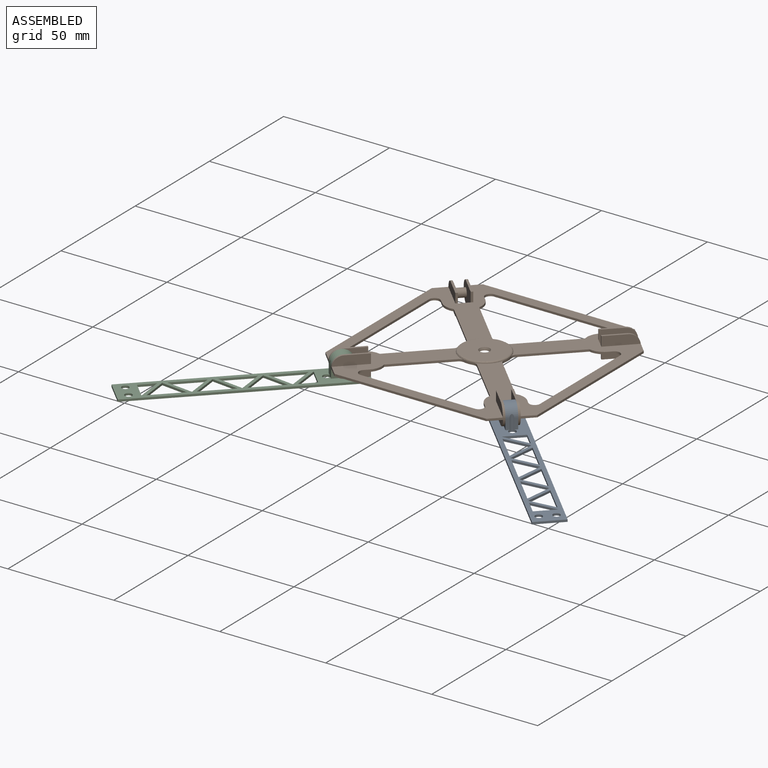
[diagram: assembled view]
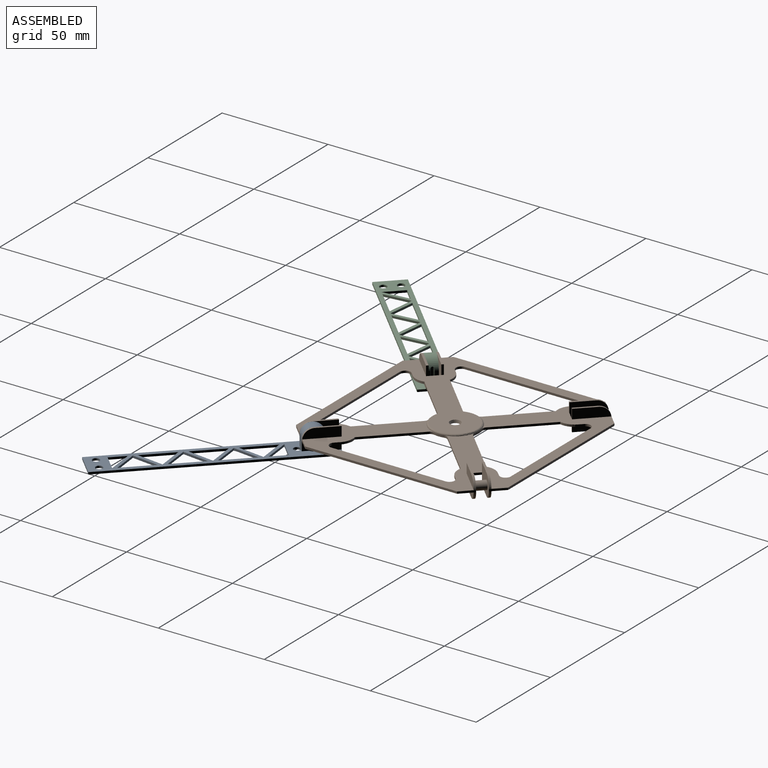
[diagram: assembled view, second angle]
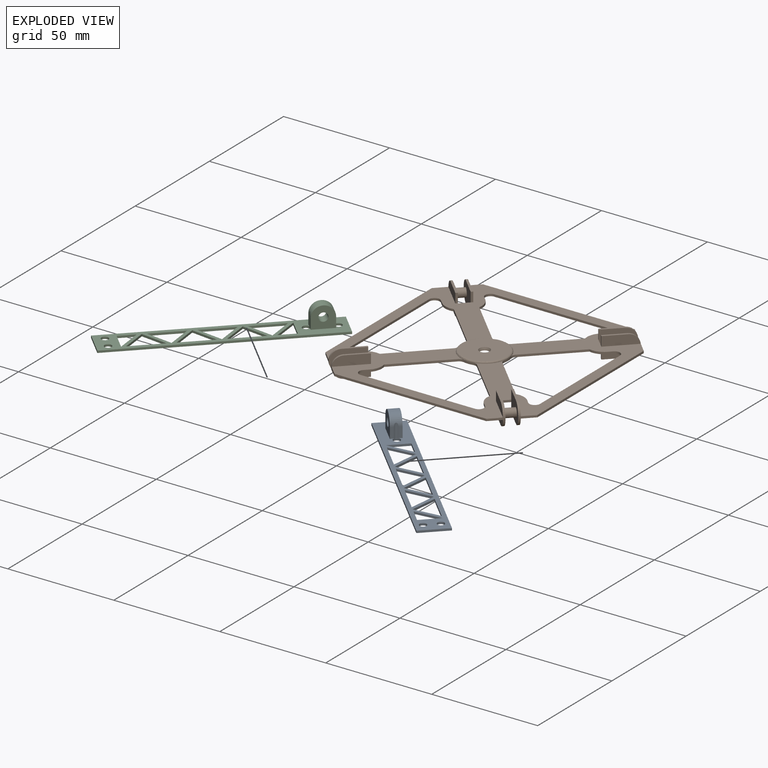
[diagram: exploded view]
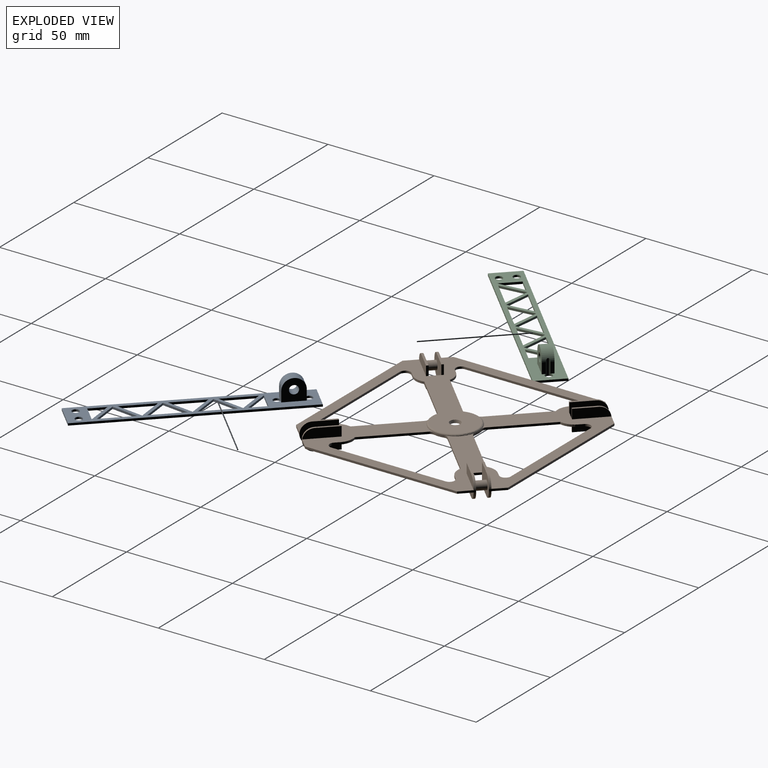
[diagram: exploded view, second angle]
ASSEMBLY  parts=3 mates=2
PART A: 42 faces, bbox 14x11x100 mm
  f0: plane 10x10mm, normal (-1,0,0), area 76.7mm2, adj f4,f7,f39,f40,f41
  f1: cylinder r=1.64mm len=7.61mm, axis (0,1,0), area 22.1mm2, adj f2,f4,f38,f39,f40
  f2: plane 5x1.61mm, normal (0,0,-1), area 8mm2, adj f1,f3,f39,f40
  f3: plane 10x10mm, normal (1,0,0), area 76.7mm2, adj f2,f6,f39,f40,f41
  f4: plane 5x1.61mm, normal (0,0,-1), area 8mm2, adj f0,f1,f39,f40
  f5: cylinder r=1.64mm len=7.61mm, axis (0,1,0), area 22.1mm2, adj f6,f7,f38,f39,f40
  f6: plane 5x1.61mm, normal (0,0,1), area 8mm2, adj f3,f5,f39,f40
  f7: plane 5x1.61mm, normal (0,0,1), area 8mm2, adj f0,f5,f39,f40
  f8: plane 10x1mm, normal (0,0,-1), area 10mm2, adj f9,f28,f38,f39
  f9: plane 10x7.9mm, normal (-0.62,0,0.78), area 12.7mm2, adj f8,f28,f38,f39
  f10: plane 10x7.9mm, normal (0.62,0,-0.78), area 12.7mm2, adj f11,f29,f38,f39
  f11: plane 15.81x1mm, normal (-1,0,0), area 15.8mm2, adj f10,f29,f38,f39
  f12: plane 10x7.9mm, normal (0.62,0,-0.78), area 12.7mm2, adj f13,f30,f38,f39
  f13: plane 15.81x1mm, normal (-1,0,0), area 15.8mm2, adj f12,f30,f38,f39
  f14: plane 10x7.9mm, normal (0.62,0,-0.78), area 12.7mm2, adj f15,f31,f38,f39
  f15: plane 15.81x1mm, normal (-1,0,0), area 15.8mm2, adj f14,f31,f38,f39
  f16: plane 100x1mm, normal (-1,0,0), area 100mm2, adj f17,f32,f38,f39
  f17: plane 14x1mm, normal (0,0,-1), area 14mm2, adj f16,f18,f38,f39
  f18: plane 100x1mm, normal (1,0,0), area 100mm2, adj f17,f32,f38,f39
  f19: plane 10x7.9mm, normal (0.62,0,-0.78), area 12.7mm2, adj f20,f33,f38,f39
  f20: plane 7.9x1mm, normal (-1,0,0), area 7.9mm2, adj f19,f33,f38,f39
  f21: plane 10x7.9mm, normal (-0.62,0,0.78), area 12.7mm2, adj f22,f34,f38,f39
  f22: plane 15.81x1mm, normal (1,0,0), area 15.8mm2, adj f21,f34,f38,f39
  f23: plane 10x7.9mm, normal (-0.62,0,0.78), area 12.7mm2, adj f24,f35,f38,f39
  f24: plane 15.81x1mm, normal (1,0,0), area 15.8mm2, adj f23,f35,f38,f39
  f25: plane 10x7.9mm, normal (-0.62,0,0.78), area 12.7mm2, adj f26,f36,f38,f39
  f26: plane 15.81x1mm, normal (1,0,0), area 15.8mm2, adj f25,f36,f38,f39
  f27: cylinder r=1.64mm len=3.28mm, axis (0,1,0), area 10.3mm2, adj f38,f39
  f28: plane 7.9x1mm, normal (1,0,0), area 7.9mm2, adj f8,f9,f38,f39
  f29: plane 10x7.9mm, normal (0.62,0,0.78), area 12.7mm2, adj f10,f11,f38,f39
  f30: plane 10x7.9mm, normal (0.62,0,0.78), area 12.7mm2, adj f12,f13,f38,f39
  f31: plane 10x7.9mm, normal (0.62,0,0.78), area 12.7mm2, adj f14,f15,f38,f39
  f32: plane 14x1mm, normal (0,0,1), area 14mm2, adj f16,f18,f38,f39
  f33: plane 10x1mm, normal (0,0,1), area 10mm2, adj f19,f20,f38,f39
  f34: plane 10x7.9mm, normal (-0.62,0,-0.78), area 12.7mm2, adj f21,f22,f38,f39
  f35: plane 10x7.9mm, normal (-0.62,0,-0.78), area 12.7mm2, adj f23,f24,f38,f39
  f36: plane 10x7.9mm, normal (-0.62,0,-0.78), area 12.7mm2, adj f25,f26,f38,f39
  f37: cylinder r=1.64mm len=3.28mm, axis (0,1,0), area 10.3mm2, adj f38,f39
  f38: plane 100x14mm, normal (0,-1,0), area 812.9mm2, adj f1,f5,f8,f9,f10,f11,f12,f13
  f39: plane 100x14mm, normal (0,1,0), area 763.6mm2, adj f0,f1,f2,f3,f4,f5,f6,f7
  f40: cylinder r=5mm len=10mm, axis (1,0,0), area 73.9mm2, adj f0,f1,f2,f3,f4,f5,f6,f7
  f41: cylinder r=2mm len=5mm, axis (1,0,0), area 62.8mm2, adj f0,f3
PART B: 131 faces, bbox 100x100x10 mm
  f0: cylinder r=11.1mm len=4.44mm, axis (0,0,-1), area 4.5mm2, adj f32,f118,f121,f130
  f1: cylinder r=11.1mm len=4.44mm, axis (0,0,-1), area 4.5mm2, adj f32,f122,f125,f130
  f2: cylinder r=11.1mm len=4.44mm, axis (0,0,-1), area 4.5mm2, adj f32,f126,f129,f130
  f3: plane 3.53x3.53mm, normal (-0.71,-0.71,0), area 5mm2, adj f31,f32,f77,f86
  f4: plane 3.53x3.53mm, normal (-0.71,0.71,0), area 5mm2, adj f31,f32,f64,f70
  f5: plane 3.53x3.53mm, normal (0.71,0.71,0), area 5mm2, adj f31,f32,f49,f56
  f6: plane 3.53x3.53mm, normal (0.71,-0.71,0), area 5mm2, adj f31,f32,f35,f44
  f7: plane 20.48x20.48mm, normal (0.71,-0.71,0), area 29mm2, adj f31,f32,f106,f114
  f8: plane 1.73x1.73mm, normal (0.71,-0.71,0), area 2.4mm2, adj f31,f32,f106,f115
  f9: plane 53.89x1mm, normal (-1,0,0), area 53.9mm2, adj f31,f32,f115,f116
  f10: plane 1.73x1.73mm, normal (0.71,0.71,0), area 2.4mm2, adj f31,f32,f107,f116
  f11: plane 20.48x20.48mm, normal (0.71,0.71,0), area 29mm2, adj f31,f32,f107,f117
  f12: plane 20.48x20.48mm, normal (-0.71,-0.71,0), area 29mm2, adj f31,f32,f108,f118
  f13: plane 1.73x1.73mm, normal (-0.71,-0.71,0), area 2.4mm2, adj f31,f32,f108,f119
  f14: plane 53.89x1mm, normal (0,1,0), area 53.9mm2, adj f31,f32,f119,f120
  f15: plane 1.73x1.73mm, normal (0.71,-0.71,0), area 2.4mm2, adj f31,f32,f109,f120
  f16: plane 20.48x20.48mm, normal (0.71,-0.71,0), area 29mm2, adj f31,f32,f109,f121
  f17: plane 20.48x20.48mm, normal (-0.71,0.71,0), area 29mm2, adj f31,f32,f110,f122
  f18: plane 1.73x1.73mm, normal (-0.71,0.71,0), area 2.4mm2, adj f31,f32,f110,f123
  f19: plane 53.89x1mm, normal (1,0,0), area 53.9mm2, adj f31,f32,f123,f124
  f20: plane 1.73x1.73mm, normal (-0.71,-0.71,0), area 2.4mm2, adj f31,f32,f111,f124
  f21: plane 20.48x20.48mm, normal (-0.71,-0.71,0), area 29mm2, adj f31,f32,f111,f125
  f22: plane 20.48x20.48mm, normal (0.71,0.71,0), area 29mm2, adj f31,f32,f112,f126
  f23: plane 1.73x1.73mm, normal (0.71,0.71,0), area 2.4mm2, adj f31,f32,f112,f127
  f24: plane 53.89x1mm, normal (0,-1,0), area 53.9mm2, adj f31,f32,f127,f128
  f25: plane 1.73x1.73mm, normal (-0.71,0.71,0), area 2.4mm2, adj f31,f32,f113,f128
  f26: plane 71.72x1mm, normal (0,1,0), area 71.7mm2, adj f31,f32,f94,f96
  f27: plane 71.72x1mm, normal (-1,0,0), area 71.7mm2, adj f31,f32,f93,f100
  f28: plane 71.72x1mm, normal (0,-1,0), area 71.7mm2, adj f31,f32,f98,f99
  f29: plane 71.72x1mm, normal (1,0,0), area 71.7mm2, adj f31,f32,f95,f97
  f30: plane 20.48x20.48mm, normal (-0.71,0.71,0), area 29mm2, adj f31,f32,f113,f129
  f31: plane 100x100mm, normal (0,0,1), area 3558.1mm2, adj f3,f4,f5,f6,f7,f8,f9,f10
  f32: plane 100x100mm, normal (0,0,-1), area 3712.8mm2, adj f0,f1,f2,f3,f4,f5,f6,f7
  f33: plane 10.94x10.94mm, normal (-0.71,-0.71,0), area 64.4mm2, adj f31,f34,f38,f98
  f34: plane 4.5x0.71mm, normal (-0.71,0.71,0), area 4.5mm2, adj f31,f33,f35,f38
  f35: plane 10.96x10.96mm, normal (0.71,0.71,0), area 131.7mm2, adj f6,f34,f36,f38,f39,f89,f98
  f36: plane 4.5x0.71mm, normal (-0.71,0.71,0), area 4.5mm2, adj f32,f35,f37,f39
  f37: plane 10.94x10.94mm, normal (-0.71,-0.71,0), area 64.4mm2, adj f32,f36,f39,f98
  f38: plane 8.13x8.13mm, normal (0,0,1), area 10.5mm2, adj f33,f34,f35,f98
  f39: plane 8.13x8.13mm, normal (0,0,-1), area 10.5mm2, adj f35,f36,f37,f98
  f40: plane 4.5x0.71mm, normal (-0.71,0.71,0), area 4.5mm2, adj f31,f41,f44,f45
  f41: plane 10.94x10.94mm, normal (0.71,0.71,0), area 64.4mm2, adj f31,f40,f45,f97
  f42: plane 10.94x10.94mm, normal (0.71,0.71,0), area 64.4mm2, adj f32,f43,f46,f97
  f43: plane 4.5x0.71mm, normal (-0.71,0.71,0), area 4.5mm2, adj f32,f42,f44,f46
  f44: plane 10.96x10.96mm, normal (-0.71,-0.71,0), area 131.7mm2, adj f6,f40,f43,f45,f46,f89,f97
  f45: plane 8.13x8.13mm, normal (0,0,1), area 10.5mm2, adj f40,f41,f44,f97
  f46: plane 8.13x8.13mm, normal (0,0,-1), area 10.5mm2, adj f42,f43,f44,f97
  f47: plane 4.5x0.71mm, normal (-0.71,-0.71,0), area 4.5mm2, adj f31,f48,f49,f52
  f48: plane 10.94x10.94mm, normal (-0.71,0.71,0), area 64.4mm2, adj f31,f47,f52,f96
  f49: plane 10.96x10.96mm, normal (0.71,-0.71,0), area 131.7mm2, adj f5,f47,f51,f52,f53,f90,f96
  f50: plane 10.94x10.94mm, normal (-0.71,0.71,0), area 64.4mm2, adj f32,f51,f53,f96
  f51: plane 4.5x0.71mm, normal (-0.71,-0.71,0), area 4.5mm2, adj f32,f49,f50,f53
  f52: plane 8.13x8.13mm, normal (0,0,1), area 10.5mm2, adj f47,f48,f49,f96
  f53: plane 8.13x8.13mm, normal (0,0,-1), area 10.5mm2, adj f49,f50,f51,f96
  f54: plane 10.94x10.94mm, normal (0.71,-0.71,0), area 64.4mm2, adj f31,f55,f59,f95
  f55: plane 4.5x0.71mm, normal (-0.71,-0.71,0), area 4.5mm2, adj f31,f54,f56,f59
  f56: plane 10.96x10.96mm, normal (-0.71,0.71,0), area 131.7mm2, adj f5,f55,f57,f59,f60,f90,f95
  f57: plane 4.5x0.71mm, normal (-0.71,-0.71,0), area 4.5mm2, adj f32,f56,f58,f60
  f58: plane 10.94x10.94mm, normal (0.71,-0.71,0), area 64.4mm2, adj f32,f57,f60,f95
  f59: plane 8.13x8.13mm, normal (0,0,1), area 10.5mm2, adj f54,f55,f56,f95
  f60: plane 8.13x8.13mm, normal (0,0,-1), area 10.5mm2, adj f56,f57,f58,f95
  f61: plane 4.5x0.71mm, normal (0.71,-0.71,0), area 4.5mm2, adj f31,f62,f64,f66
  f62: plane 10.94x10.94mm, normal (-0.71,-0.71,0), area 64.4mm2, adj f31,f61,f66,f93
  f63: plane 4.5x0.71mm, normal (0.71,-0.71,0), area 4.5mm2, adj f32,f64,f65,f67
  f64: plane 10.96x10.96mm, normal (0.71,0.71,0), area 131.7mm2, adj f4,f61,f63,f66,f67,f91,f93
  f65: plane 10.94x10.94mm, normal (-0.71,-0.71,0), area 64.4mm2, adj f32,f63,f67,f93
  f66: plane 8.13x8.13mm, normal (0,0,1), area 10.5mm2, adj f61,f62,f64,f93
  f67: plane 8.13x8.13mm, normal (0,0,-1), area 10.5mm2, adj f63,f64,f65,f93
  f68: plane 10.94x10.94mm, normal (0.71,0.71,0), area 64.4mm2, adj f31,f69,f73,f94
  f69: plane 4.5x0.71mm, normal (0.71,-0.71,0), area 4.5mm2, adj f31,f68,f70,f73
  f70: plane 10.96x10.96mm, normal (-0.71,-0.71,0), area 131.7mm2, adj f4,f69,f71,f73,f74,f91,f94
  f71: plane 4.5x0.71mm, normal (0.71,-0.71,0), area 4.5mm2, adj f32,f70,f72,f74
  f72: plane 10.94x10.94mm, normal (0.71,0.71,0), area 64.4mm2, adj f32,f71,f74,f94
  f73: plane 8.13x8.13mm, normal (0,0,1), area 10.5mm2, adj f68,f69,f70,f94
  f74: plane 8.13x8.13mm, normal (0,0,-1), area 10.5mm2, adj f70,f71,f72,f94
  f75: plane 10.94x10.94mm, normal (-0.71,0.71,0), area 64.4mm2, adj f31,f76,f80,f100
  f76: plane 4.5x0.71mm, normal (0.71,0.71,0), area 4.5mm2, adj f31,f75,f77,f80
  f77: plane 10.96x10.96mm, normal (0.71,-0.71,0), area 131.7mm2, adj f3,f76,f78,f80,f81,f92,f100
  f78: plane 4.5x0.71mm, normal (0.71,0.71,0), area 4.5mm2, adj f32,f77,f79,f81
  f79: plane 10.94x10.94mm, normal (-0.71,0.71,0), area 64.4mm2, adj f32,f78,f81,f100
  f80: plane 8.13x8.13mm, normal (0,0,1), area 10.5mm2, adj f75,f76,f77,f100
  f81: plane 8.13x8.13mm, normal (0,0,-1), area 10.5mm2, adj f77,f78,f79,f100
  f82: plane 4.5x0.71mm, normal (0.71,0.71,0), area 4.5mm2, adj f31,f83,f86,f87
  f83: plane 10.94x10.94mm, normal (0.71,-0.71,0), area 64.4mm2, adj f31,f82,f87,f99
  f84: plane 10.94x10.94mm, normal (0.71,-0.71,0), area 64.4mm2, adj f32,f85,f88,f99
  f85: plane 4.5x0.71mm, normal (0.71,0.71,0), area 4.5mm2, adj f32,f84,f86,f88
  f86: plane 10.96x10.96mm, normal (-0.71,0.71,0), area 131.7mm2, adj f3,f82,f85,f87,f88,f92,f99
  f87: plane 8.13x8.13mm, normal (0,0,1), area 10.5mm2, adj f82,f83,f86,f99
  f88: plane 8.13x8.13mm, normal (0,0,-1), area 10.5mm2, adj f84,f85,f86,f99
  f89: cylinder r=2mm len=6.36mm, axis (0.71,0.71,0), area 62.8mm2, adj f35,f44
  f90: cylinder r=2mm len=6.36mm, axis (-0.71,0.71,0), area 62.8mm2, adj f49,f56
  f91: cylinder r=2mm len=6.36mm, axis (-0.71,-0.71,0), area 62.8mm2, adj f64,f70
  f92: cylinder r=2mm len=6.36mm, axis (0.71,-0.71,0), area 62.8mm2, adj f77,f86
  f93: cylinder r=5mm len=10mm, axis (0.71,0.71,0), area 22.2mm2, adj f27,f31,f32,f62,f64,f65,f66,f67
  f94: cylinder r=5mm len=10mm, axis (0.71,0.71,0), area 22.2mm2, adj f26,f31,f32,f68,f70,f72,f73,f74
  f95: cylinder r=5mm len=10mm, axis (0.71,-0.71,0), area 22.2mm2, adj f29,f31,f32,f54,f56,f58,f59,f60
  f96: cylinder r=5mm len=10mm, axis (0.71,-0.71,0), area 22.2mm2, adj f26,f31,f32,f48,f49,f50,f52,f53
  f97: cylinder r=5mm len=10mm, axis (-0.71,-0.71,0), area 22.2mm2, adj f29,f31,f32,f41,f42,f44,f45,f46
  f98: cylinder r=5mm len=10mm, axis (-0.71,-0.71,0), area 22.2mm2, adj f28,f31,f32,f33,f35,f37,f38,f39
  f99: cylinder r=5mm len=10mm, axis (-0.71,0.71,0), area 22.2mm2, adj f28,f31,f32,f83,f84,f86,f87,f88
  f100: cylinder r=5mm len=10mm, axis (-0.71,0.71,0), area 22.2mm2, adj f27,f31,f32,f75,f77,f79,f80,f81
  f101: cylinder r=11.1mm len=4.44mm, axis (0,0,-1), area 4.5mm2, adj f32,f114,f117,f130
  f102: plane 20.7x20.7mm, normal (0,0,1), area 316.9mm2, adj f105,f130
  f103: plane 16.2x16.2mm, normal (0,0,-1), area 192.5mm2, adj f104,f105
  f104: cone r=9.1mm half-angle=45deg, axis (0,0,-1), area 37.1mm2, adj f32,f103
  f105: cone r=2mm half-angle=18.4deg, axis (0,0,1), area 19mm2, adj f102,f103
  f106: cylinder r=7.5mm len=6.96mm, axis (0,0,-1), area 7.6mm2, adj f7,f8,f31,f32
  f107: cylinder r=7.5mm len=6.96mm, axis (0,0,-1), area 7.6mm2, adj f10,f11,f31,f32
  f108: cylinder r=7.5mm len=6.96mm, axis (0,0,-1), area 7.6mm2, adj f12,f13,f31,f32
  f109: cylinder r=7.5mm len=6.96mm, axis (0,0,-1), area 7.6mm2, adj f15,f16,f31,f32
  f110: cylinder r=7.5mm len=6.96mm, axis (0,0,-1), area 7.6mm2, adj f17,f18,f31,f32
  f111: cylinder r=7.5mm len=6.96mm, axis (0,0,-1), area 7.6mm2, adj f20,f21,f31,f32
  f112: cylinder r=7.5mm len=6.96mm, axis (0,0,-1), area 7.6mm2, adj f22,f23,f31,f32
  f113: cylinder r=7.5mm len=6.96mm, axis (0,0,-1), area 7.6mm2, adj f25,f30,f31,f32
  f114: cylinder r=2.5mm len=2.27mm, axis (0,0,-1), area 2.5mm2, adj f7,f31,f32,f101
  f115: cylinder r=2.5mm len=4.27mm, axis (0,0,-1), area 5.9mm2, adj f8,f9,f31,f32
  f116: cylinder r=2.5mm len=4.27mm, axis (0,0,1), area 5.9mm2, adj f9,f10,f31,f32
  f117: cylinder r=2.5mm len=2.27mm, axis (0,0,-1), area 2.5mm2, adj f11,f31,f32,f101
  f118: cylinder r=2.5mm len=2.27mm, axis (0,0,-1), area 2.5mm2, adj f0,f12,f31,f32
  f119: cylinder r=2.5mm len=4.27mm, axis (0,0,-1), area 5.9mm2, adj f13,f14,f31,f32
  f120: cylinder r=2.5mm len=4.27mm, axis (0,0,1), area 5.9mm2, adj f14,f15,f31,f32
  f121: cylinder r=2.5mm len=2.27mm, axis (0,0,-1), area 2.5mm2, adj f0,f16,f31,f32
  f122: cylinder r=2.5mm len=2.27mm, axis (0,0,-1), area 2.5mm2, adj f1,f17,f31,f32
  f123: cylinder r=2.5mm len=4.27mm, axis (0,0,-1), area 5.9mm2, adj f18,f19,f31,f32
  f124: cylinder r=2.5mm len=4.27mm, axis (0,0,1), area 5.9mm2, adj f19,f20,f31,f32
  f125: cylinder r=2.5mm len=2.27mm, axis (0,0,-1), area 2.5mm2, adj f1,f21,f31,f32
  f126: cylinder r=2.5mm len=2.27mm, axis (0,0,-1), area 2.5mm2, adj f2,f22,f31,f32
  f127: cylinder r=2.5mm len=4.27mm, axis (0,0,-1), area 5.9mm2, adj f23,f24,f31,f32
  f128: cylinder r=2.5mm len=4.27mm, axis (0,0,1), area 5.9mm2, adj f24,f25,f31,f32
  f129: cylinder r=2.5mm len=2.27mm, axis (0,0,-1), area 2.5mm2, adj f2,f30,f31,f32
  f130: torus R=10.35mm, axis (0,0,1), area 80.1mm2, adj f0,f1,f2,f31,f101,f102
PART C: same geometry as A
PLACE A rot(axis=(0.86,0.36,0.36),98.4deg) t=(67.22,-67.31,-5.03)mm
PLACE B t=(-0.11,0.02,-0.03)mm fixed
PLACE C rot(axis=(0.86,-0.36,-0.36),98.4deg) t=(-67.43,-67.31,-5.03)mm
MATE revolute A.f40 <-> B.f89  axis (0.71,0.71,0) through (39.29,-39.38,-0.03)mm
MATE revolute B.f92 <-> C.f40  axis (0.71,-0.71,0) through (-39.5,-39.38,-0.03)mm
